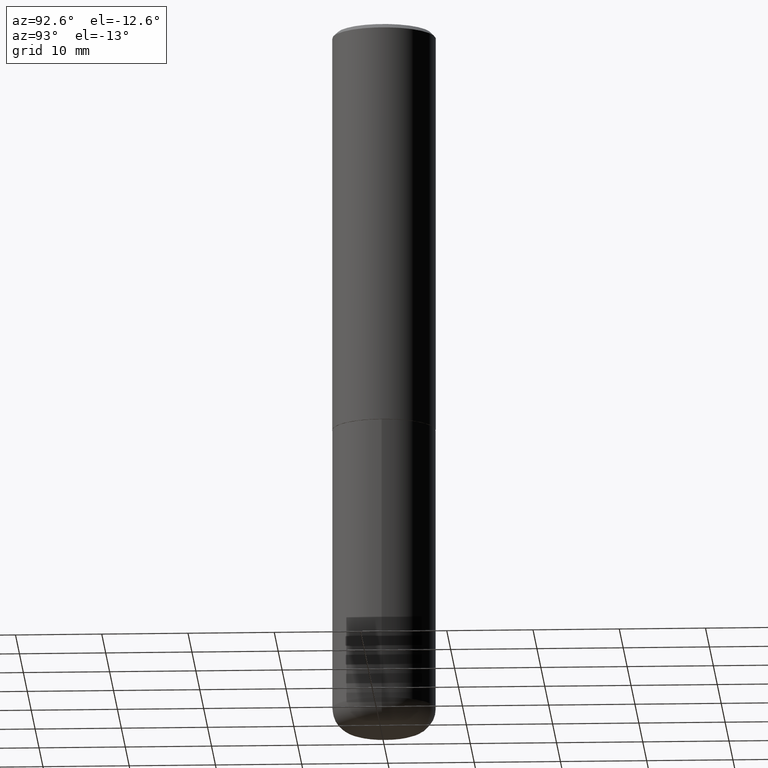
[diagram: clean part render]
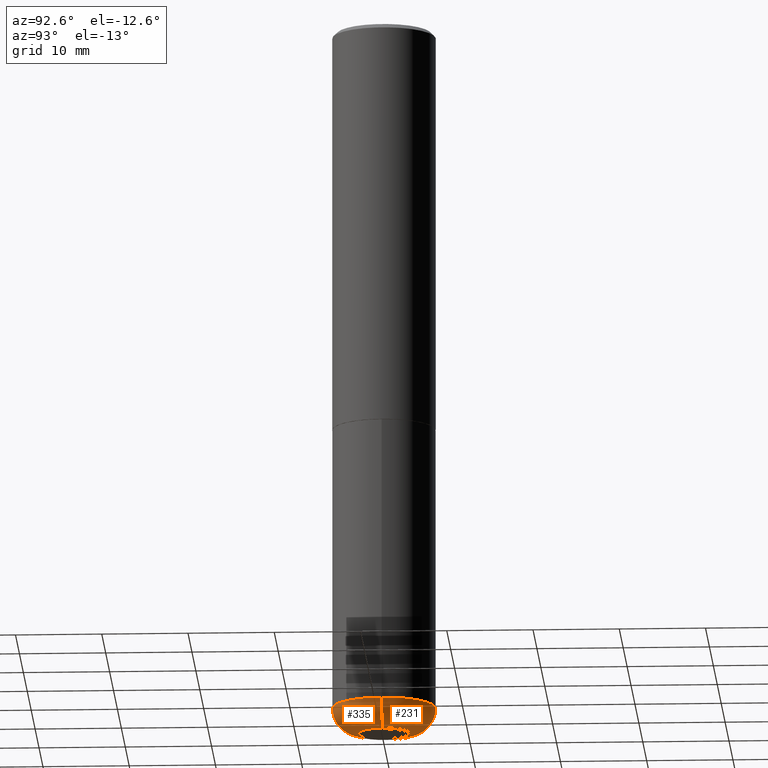
[diagram: same view with one multi-face feature highlighted, each face labeled with its STEP entity id]
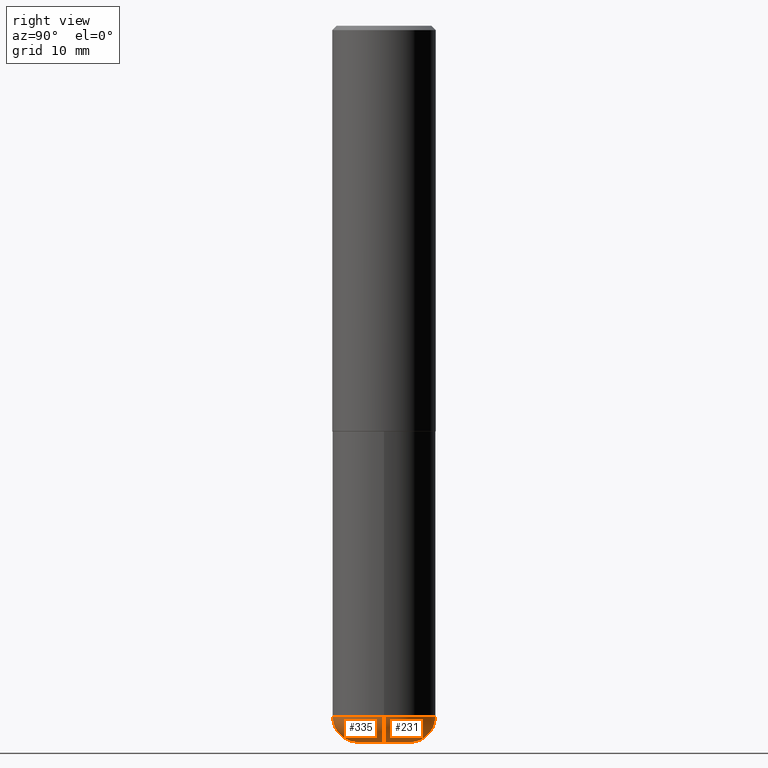
[diagram: same view with one multi-face feature highlighted, each face labeled with its STEP entity id]
A machine part, auxiliary view. The highlighted faces form ONE feature: a constant-radius fillet chain: 2 tangent blend faces with common blend radius 2.9997 mm. The faces share edges in the B-rep.
A second angle (right view) of the same feature is appended — it is thin or edge-on in the first view.
Their STEP definitions:
[1] entity #335 (Torus):
#1 = DIRECTION ( 'NONE',  ( 7.105427357601001859E-15, 1.000000000000000000, -3.491481338843145583E-15 ) ) ;
#4 = VERTEX_POINT ( 'NONE', #107 ) ;
#5 = DIRECTION ( 'NONE',  ( 1.000000000000000000, -6.982962677686264344E-15, 0.000000000000000000 ) ) ;
#17 = CIRCLE ( 'NONE', #313, 0.1180999999999997607 ) ;
#36 = DIRECTION ( 'NONE',  ( -2.445468806185136597E-29, 3.491481338843145583E-15, 1.000000000000000000 ) ) ;
#37 = VERTEX_POINT ( 'NONE', #278 ) ;
#45 = CIRCLE ( 'NONE', #267, 0.1181000000000000105 ) ;
#49 = CARTESIAN_POINT ( 'NONE',  ( -0.2361999999999998823, -9.318467682955017493E-15, -3.149600000000000399 ) ) ;
#57 = VERTEX_POINT ( 'NONE', #49 ) ;
#60 = EDGE_LOOP ( 'NONE', ( #230, #293, #387, #64 ) ) ;
#64 = ORIENTED_EDGE ( 'NONE', *, *, #202, .F. ) ;
#94 = CIRCLE ( 'NONE', #273, 0.1180999999999997607 ) ;
#103 = TOROIDAL_SURFACE ( 'NONE', #348, 0.1180999999999999966, 0.1180999999999997607 ) ;
#105 = EDGE_CURVE ( 'NONE', #37, #57, #94, .T. ) ;
#107 = CARTESIAN_POINT ( 'NONE',  ( 0.2361999999999998823, -1.264614540928986883E-14, -3.149600000000000399 ) ) ;
#128 = DIRECTION ( 'NONE',  ( 1.000000000000000000, -6.982962677686270655E-15, 0.000000000000000000 ) ) ;
#154 = EDGE_CURVE ( 'NONE', #345, #4, #17, .T. ) ;
#162 = CARTESIAN_POINT ( 'NONE',  ( 7.702248551960706711E-29, -1.099676962482037231E-14, -3.149600000000000399 ) ) ;
#196 = CARTESIAN_POINT ( 'NONE',  ( 0.1180999999999999966, -1.182145751705512057E-14, -3.149600000000000399 ) ) ;
#202 = EDGE_CURVE ( 'NONE', #57, #4, #411, .T. ) ;
#230 = ORIENTED_EDGE ( 'NONE', *, *, #105, .F. ) ;
#235 = FACE_OUTER_BOUND ( 'NONE', #60, .T. ) ;
#260 = EDGE_CURVE ( 'NONE', #37, #345, #45, .T. ) ;
#267 = AXIS2_PLACEMENT_3D ( 'NONE', #323, #36, #397 ) ;
#273 = AXIS2_PLACEMENT_3D ( 'NONE', #286, #1, #385 ) ;
#278 = CARTESIAN_POINT ( 'NONE',  ( -0.1181000000000000383, -9.944215141480041685E-15, -3.267699999999999605 ) ) ;
#286 = CARTESIAN_POINT ( 'NONE',  ( -0.1180999999999999966, -1.015761865388769332E-14, -3.149600000000000399 ) ) ;
#293 = ORIENTED_EDGE ( 'NONE', *, *, #260, .T. ) ;
#304 = DIRECTION ( 'NONE',  ( -2.445468806185136597E-29, 3.491481338843145583E-15, 1.000000000000000000 ) ) ;
#309 = CARTESIAN_POINT ( 'NONE',  ( 7.702248551960706711E-29, -1.099676962482037231E-14, -3.149600000000000399 ) ) ;
#313 = AXIS2_PLACEMENT_3D ( 'NONE', #196, #414, #128 ) ;
#323 = CARTESIAN_POINT ( 'NONE',  ( 7.991058417971169471E-29, -1.140911357093774486E-14, -3.267699999999999605 ) ) ;
#328 = DIRECTION ( 'NONE',  ( -2.445468806185136597E-29, 3.491481338843145583E-15, 1.000000000000000000 ) ) ;
#332 = AXIS2_PLACEMENT_3D ( 'NONE', #162, #328, #5 ) ;
#335 = ADVANCED_FACE ( 'NONE', ( #235 ), #103, .T. ) ;
#341 = DIRECTION ( 'NONE',  ( 1.000000000000000000, -6.982962677686263555E-15, 4.883557194083111780E-29 ) ) ;
#345 = VERTEX_POINT ( 'NONE', #365 ) ;
#348 = AXIS2_PLACEMENT_3D ( 'NONE', #309, #304, #341 ) ;
#365 = CARTESIAN_POINT ( 'NONE',  ( 0.1181000000000000105, -1.223380146317249313E-14, -3.267699999999999605 ) ) ;
#385 = DIRECTION ( 'NONE',  ( -1.000000000000000000, 7.105427357601001859E-15, 0.000000000000000000 ) ) ;
#387 = ORIENTED_EDGE ( 'NONE', *, *, #154, .T. ) ;
#397 = DIRECTION ( 'NONE',  ( 1.000000000000000000, -6.982962677686272233E-15, 0.000000000000000000 ) ) ;
#411 = CIRCLE ( 'NONE', #332, 0.2362000000000000210 ) ;
#414 = DIRECTION ( 'NONE',  ( -6.982962677686266711E-15, -1.000000000000000000, 3.491481338843145583E-15 ) ) ;
[2] entity #231 (Torus):
#1 = DIRECTION ( 'NONE',  ( 7.105427357601001859E-15, 1.000000000000000000, -3.491481338843145583E-15 ) ) ;
#3 = DIRECTION ( 'NONE',  ( -2.445468806185136597E-29, 3.491481338843145583E-15, 1.000000000000000000 ) ) ;
#4 = VERTEX_POINT ( 'NONE', #107 ) ;
#17 = CIRCLE ( 'NONE', #313, 0.1180999999999997607 ) ;
#22 = CIRCLE ( 'NONE', #298, 0.1181000000000000105 ) ;
#34 = ORIENTED_EDGE ( 'NONE', *, *, #71, .T. ) ;
#37 = VERTEX_POINT ( 'NONE', #278 ) ;
#47 = CARTESIAN_POINT ( 'NONE',  ( 7.702248551960706711E-29, -1.099676962482037231E-14, -3.149600000000000399 ) ) ;
#49 = CARTESIAN_POINT ( 'NONE',  ( -0.2361999999999998823, -9.318467682955017493E-15, -3.149600000000000399 ) ) ;
#53 = EDGE_CURVE ( 'NONE', #4, #57, #333, .T. ) ;
#57 = VERTEX_POINT ( 'NONE', #49 ) ;
#71 = EDGE_CURVE ( 'NONE', #345, #37, #22, .T. ) ;
#94 = CIRCLE ( 'NONE', #273, 0.1180999999999997607 ) ;
#98 = ORIENTED_EDGE ( 'NONE', *, *, #53, .F. ) ;
#105 = EDGE_CURVE ( 'NONE', #37, #57, #94, .T. ) ;
#107 = CARTESIAN_POINT ( 'NONE',  ( 0.2361999999999998823, -1.264614540928986883E-14, -3.149600000000000399 ) ) ;
#126 = EDGE_LOOP ( 'NONE', ( #34, #187, #98, #409 ) ) ;
#128 = DIRECTION ( 'NONE',  ( 1.000000000000000000, -6.982962677686270655E-15, 0.000000000000000000 ) ) ;
#154 = EDGE_CURVE ( 'NONE', #345, #4, #17, .T. ) ;
#165 = TOROIDAL_SURFACE ( 'NONE', #224, 0.1180999999999999966, 0.1180999999999997607 ) ;
#172 = DIRECTION ( 'NONE',  ( -2.445468806185136597E-29, 3.491481338843145583E-15, 1.000000000000000000 ) ) ;
#187 = ORIENTED_EDGE ( 'NONE', *, *, #105, .T. ) ;
#196 = CARTESIAN_POINT ( 'NONE',  ( 0.1180999999999999966, -1.182145751705512057E-14, -3.149600000000000399 ) ) ;
#210 = DIRECTION ( 'NONE',  ( -2.445468806185136597E-29, 3.491481338843145583E-15, 1.000000000000000000 ) ) ;
#224 = AXIS2_PLACEMENT_3D ( 'NONE', #229, #3, #327 ) ;
#229 = CARTESIAN_POINT ( 'NONE',  ( 7.702248551960706711E-29, -1.099676962482037231E-14, -3.149600000000000399 ) ) ;
#231 = ADVANCED_FACE ( 'NONE', ( #292 ), #165, .T. ) ;
#238 = DIRECTION ( 'NONE',  ( 1.000000000000000000, -6.982962677686272233E-15, 0.000000000000000000 ) ) ;
#273 = AXIS2_PLACEMENT_3D ( 'NONE', #286, #1, #385 ) ;
#278 = CARTESIAN_POINT ( 'NONE',  ( -0.1181000000000000383, -9.944215141480041685E-15, -3.267699999999999605 ) ) ;
#286 = CARTESIAN_POINT ( 'NONE',  ( -0.1180999999999999966, -1.015761865388769332E-14, -3.149600000000000399 ) ) ;
#292 = FACE_OUTER_BOUND ( 'NONE', #126, .T. ) ;
#298 = AXIS2_PLACEMENT_3D ( 'NONE', #401, #210, #238 ) ;
#305 = DIRECTION ( 'NONE',  ( 1.000000000000000000, -6.982962677686264344E-15, 0.000000000000000000 ) ) ;
#313 = AXIS2_PLACEMENT_3D ( 'NONE', #196, #414, #128 ) ;
#327 = DIRECTION ( 'NONE',  ( 1.000000000000000000, -6.982962677686263555E-15, 4.883557194083111780E-29 ) ) ;
#333 = CIRCLE ( 'NONE', #368, 0.2362000000000000210 ) ;
#345 = VERTEX_POINT ( 'NONE', #365 ) ;
#365 = CARTESIAN_POINT ( 'NONE',  ( 0.1181000000000000105, -1.223380146317249313E-14, -3.267699999999999605 ) ) ;
#368 = AXIS2_PLACEMENT_3D ( 'NONE', #47, #172, #305 ) ;
#385 = DIRECTION ( 'NONE',  ( -1.000000000000000000, 7.105427357601001859E-15, 0.000000000000000000 ) ) ;
#401 = CARTESIAN_POINT ( 'NONE',  ( 7.991058417971169471E-29, -1.140911357093774486E-14, -3.267699999999999605 ) ) ;
#409 = ORIENTED_EDGE ( 'NONE', *, *, #154, .F. ) ;
#414 = DIRECTION ( 'NONE',  ( -6.982962677686266711E-15, -1.000000000000000000, 3.491481338843145583E-15 ) ) ;